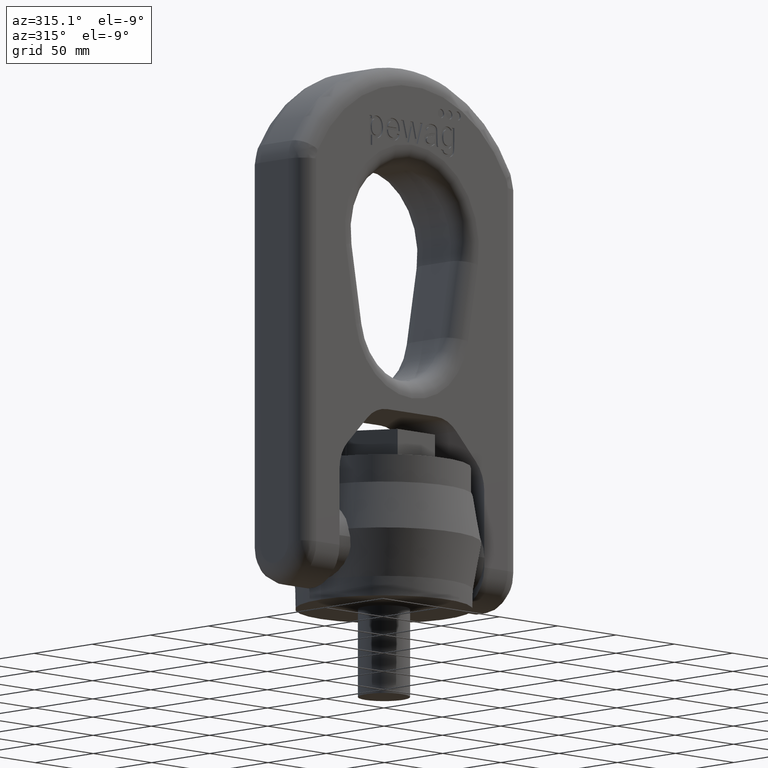
[diagram: clean part render]
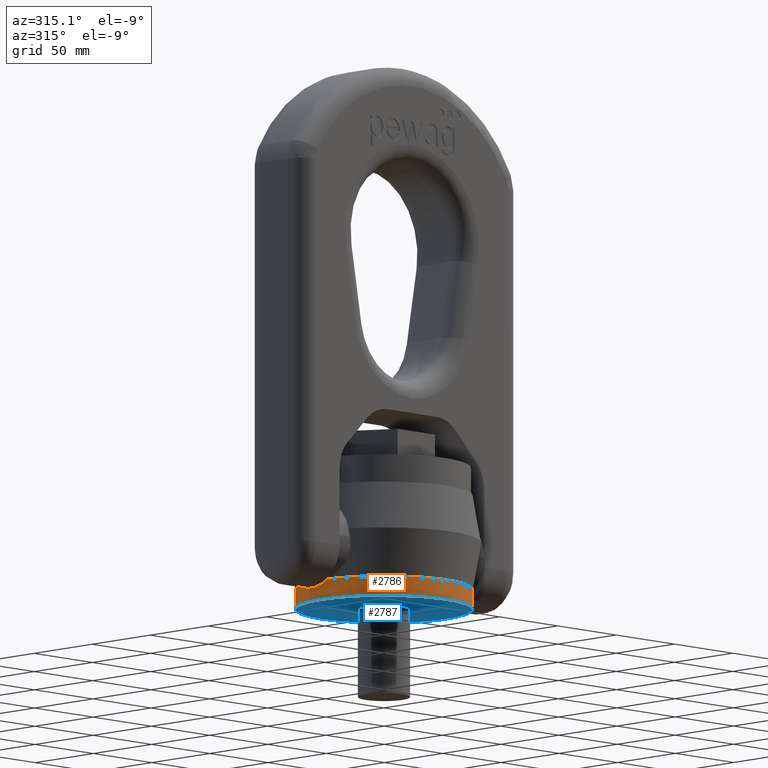
[diagram: same view with the hole feature highlighted: cylindrical wall and planar end face, labeled with their STEP entity ids]
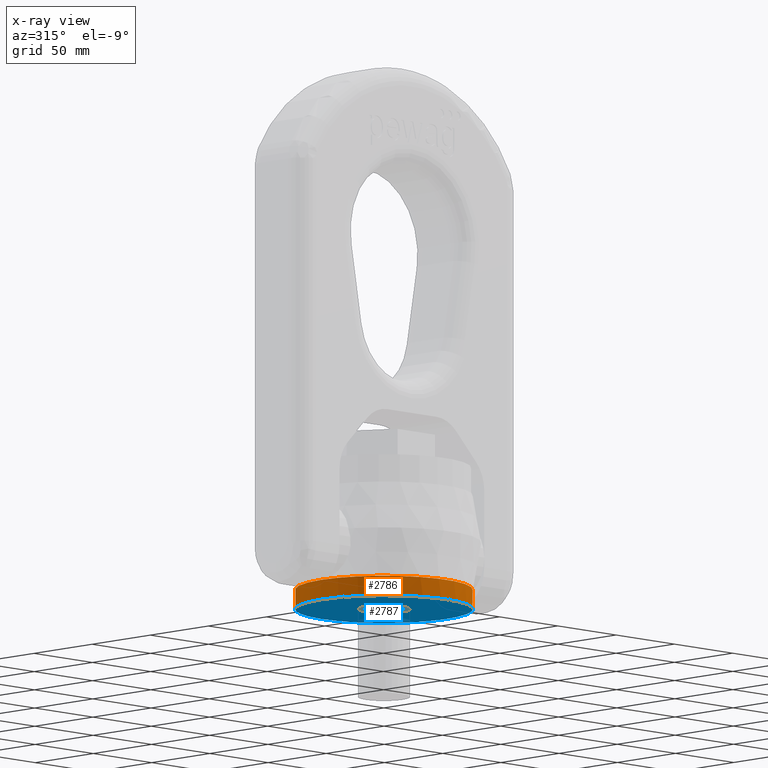
[diagram: x-ray of the same camera — body ghosted, the hole faces saturated]
A machine part, auxiliary view. The highlighted faces form one hole feature of diameter 108 mm: the cylindrical wall (entity #2786, orange) and its adjacent planar end face (entity #2787, blue) — they share a circular edge in the B-rep.
The next image is the same camera in x-ray (body ghosted, the hole faces saturated) — the bore reads through the body.
Wall:
#2786=ADVANCED_FACE('',(#3069,#3070),#3040,.T.);
#3040=CYLINDRICAL_SURFACE('',#5830,54.);
#3069=FACE_BOUND('',#3137,.T.);
#3070=FACE_BOUND('',#3138,.T.);
#3137=EDGE_LOOP('',(#3433));
#3138=EDGE_LOOP('',(#3434));
#3433=ORIENTED_EDGE('',*,*,#5117,.T.);
#3434=ORIENTED_EDGE('',*,*,#5118,.F.);
#4697=VERTEX_POINT('',#6938);
#4698=VERTEX_POINT('',#6940);
#5117=EDGE_CURVE('',#4697,#4697,#5749,.T.);
#5118=EDGE_CURVE('',#4698,#4698,#5750,.T.);
#5749=CIRCLE('',#5828,54.);
#5750=CIRCLE('',#5829,54.);
#5828=AXIS2_PLACEMENT_3D('',#6937,#6066,#6067);
#5829=AXIS2_PLACEMENT_3D('',#6939,#6068,#6069);
#5830=AXIS2_PLACEMENT_3D('',#6941,#6070,#6071);
#6066=DIRECTION('',(0.,0.,-1.));
#6067=DIRECTION('',(-1.,0.,0.));
#6068=DIRECTION('',(0.,0.,-1.));
#6069=DIRECTION('',(-6.12323399573677E-17,1.,0.));
#6070=DIRECTION('',(0.,0.,-1.));
#6071=DIRECTION('',(-1.,0.,0.));
#6937=CARTESIAN_POINT('',(0.,0.,12.));
#6938=CARTESIAN_POINT('',(-54.,0.,12.));
#6939=CARTESIAN_POINT('',(0.,0.,0.));
#6940=CARTESIAN_POINT('',(-3.30654635769785E-15,54.,0.));
#6941=CARTESIAN_POINT('',(0.,0.,12.));
End face:
#2665=PLANE('',#5832);
#2787=ADVANCED_FACE('',(#3071,#3072),#2665,.T.);
#3071=FACE_BOUND('',#3139,.T.);
#3072=FACE_BOUND('',#3140,.T.);
#3139=EDGE_LOOP('',(#3435));
#3140=EDGE_LOOP('',(#3436));
#3435=ORIENTED_EDGE('',*,*,#5119,.F.);
#3436=ORIENTED_EDGE('',*,*,#5118,.T.);
#4698=VERTEX_POINT('',#6940);
#4699=VERTEX_POINT('',#6943);
#5118=EDGE_CURVE('',#4698,#4698,#5750,.T.);
#5119=EDGE_CURVE('',#4699,#4699,#5751,.T.);
#5750=CIRCLE('',#5829,54.);
#5751=CIRCLE('',#5831,15.875);
#5829=AXIS2_PLACEMENT_3D('',#6939,#6068,#6069);
#5831=AXIS2_PLACEMENT_3D('',#6942,#6072,#6073);
#5832=AXIS2_PLACEMENT_3D('',#6944,#6074,#6075);
#6068=DIRECTION('',(0.,0.,-1.));
#6069=DIRECTION('',(-6.12323399573677E-17,1.,0.));
#6072=DIRECTION('',(0.,0.,-1.));
#6073=DIRECTION('',(-6.12323399573677E-17,1.,0.));
#6074=DIRECTION('',(0.,0.,-1.));
#6075=DIRECTION('',(-1.,0.,0.));
#6939=CARTESIAN_POINT('',(0.,0.,0.));
#6940=CARTESIAN_POINT('',(-3.30654635769785E-15,54.,0.));
#6942=CARTESIAN_POINT('',(0.,0.,0.));
#6943=CARTESIAN_POINT('',(-9.72063396823212E-16,15.875,0.));
#6944=CARTESIAN_POINT('',(0.,0.,0.));